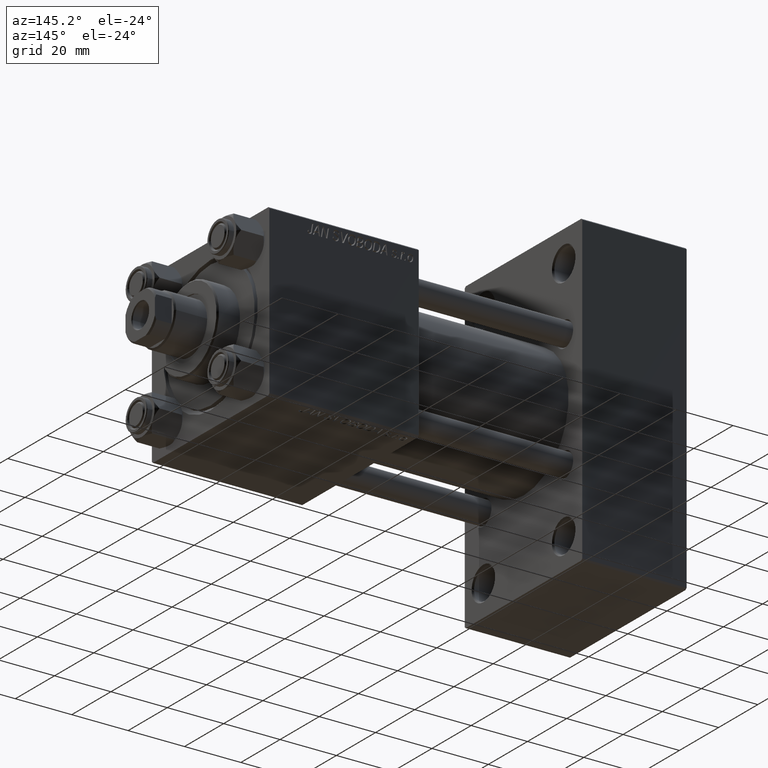
[diagram: clean part render]
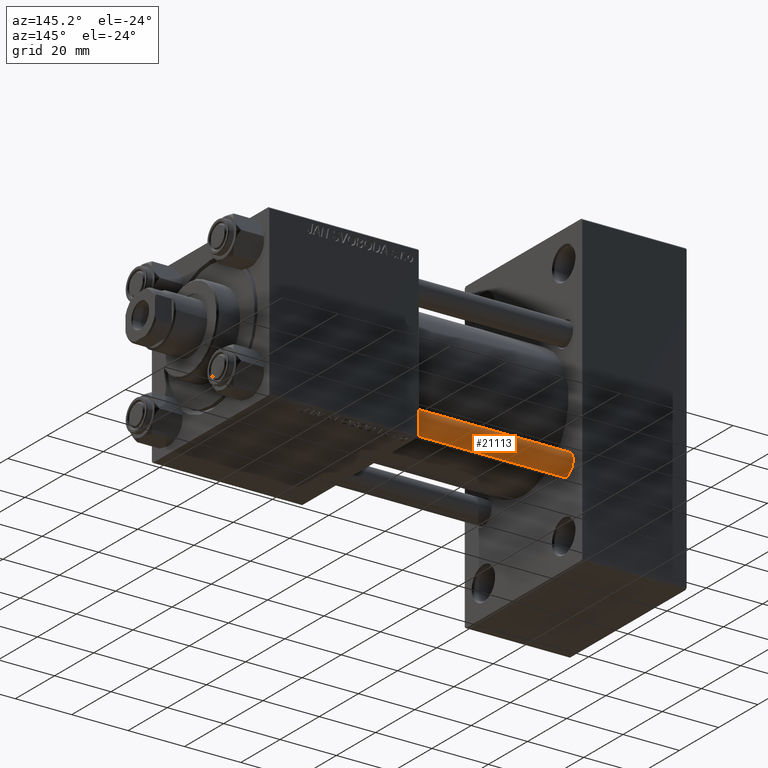
[diagram: same view with one face highlighted and labeled with its STEP entity id]
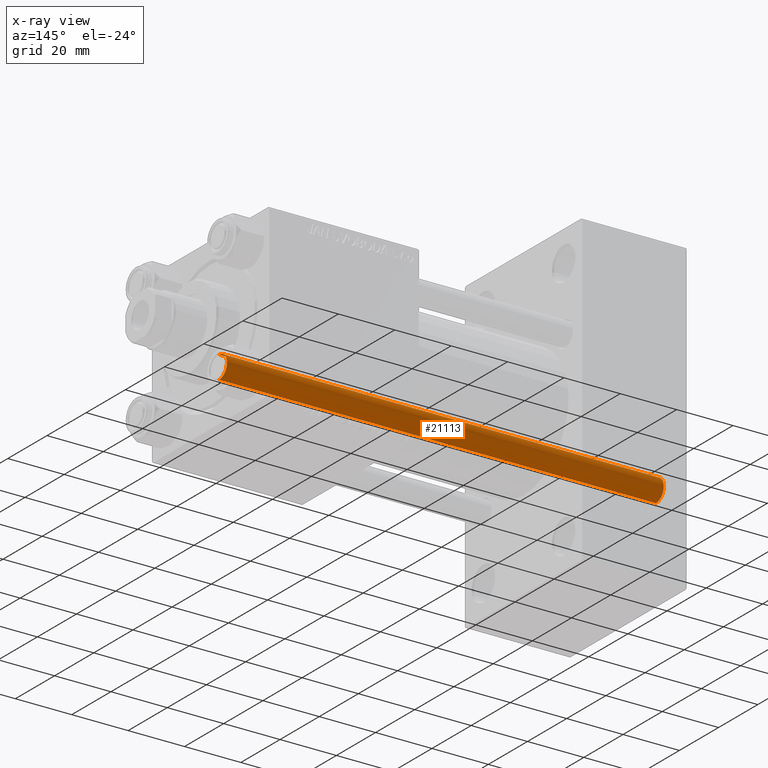
[diagram: x-ray of the same camera — body ghosted, the highlighted face saturated]
A machine part, auxiliary view. The second image highlights one B-rep face of the part: STEP entity #21113.
The next image is the same camera in x-ray: the body ghosted, the highlighted face saturated — about 0% of this face is hidden behind the body in this view.
In plain terms, the highlighted cylindrical surface (edge-blend (fillet) strip) has radius 4 mm, axis along (-1, 0, 0).
Its self-contained STEP definition (entity closure, byte-faithful):
#287 = DIRECTION ( 'NONE',  ( -0.000000000000000000, -0.000000000000000000, -1.000000000000000000 ) ) ;
#1022 = CARTESIAN_POINT ( 'NONE',  ( 4.000000000000000000, 4.898587196589412829E-16, 156.0000000000000000 ) ) ;
#2188 = VERTEX_POINT ( 'NONE', #18750 ) ;
#2992 = VECTOR ( 'NONE', #10611, 1000.000000000000000 ) ;
#3033 = DIRECTION ( 'NONE',  ( 1.000000000000000000, 0.000000000000000000, 0.000000000000000000 ) ) ;
#6864 = CARTESIAN_POINT ( 'NONE',  ( -4.000000000000000000, 0.000000000000000000, 0.5000000000000281997 ) ) ;
#6955 = CIRCLE ( 'NONE', #20639, 4.000000000000000000 ) ;
#8426 = DIRECTION ( 'NONE',  ( -1.000000000000000000, 0.000000000000000000, 0.000000000000000000 ) ) ;
#8490 = DIRECTION ( 'NONE',  ( 1.000000000000000000, 0.000000000000000000, 0.000000000000000000 ) ) ;
#9012 = CARTESIAN_POINT ( 'NONE',  ( 4.000000000000000000, 4.898587196589412829E-16, 0.5000000000000281997 ) ) ;
#10611 = DIRECTION ( 'NONE',  ( -0.000000000000000000, -0.000000000000000000, -1.000000000000000000 ) ) ;
#12700 = CARTESIAN_POINT ( 'NONE',  ( 0.000000000000000000, 0.000000000000000000, 156.0000000000000000 ) ) ;
#15514 = EDGE_CURVE ( 'NONE', #24459, #31762, #31847, .T. ) ;
#15892 = EDGE_LOOP ( 'NONE', ( #48003, #40314, #44352, #34728 ) ) ;
#17912 = EDGE_CURVE ( 'NONE', #39450, #31762, #6955, .T. ) ;
#18427 = LINE ( 'NONE', #26526, #2992 ) ;
#18750 = CARTESIAN_POINT ( 'NONE',  ( -4.000000000000000000, 0.000000000000000000, 155.5000000000000284 ) ) ;
#18912 = DIRECTION ( 'NONE',  ( -0.000000000000000000, -0.000000000000000000, 1.000000000000000000 ) ) ;
#20639 = AXIS2_PLACEMENT_3D ( 'NONE', #45229, #18912, #3033 ) ;
#21113 = ADVANCED_FACE ( 'NONE', ( #27385 ), #27626, .T. ) ;
#22410 = EDGE_CURVE ( 'NONE', #2188, #39450, #18427, .T. ) ;
#24459 = VERTEX_POINT ( 'NONE', #38083 ) ;
#26428 = AXIS2_PLACEMENT_3D ( 'NONE', #12700, #31161, #8426 ) ;
#26526 = CARTESIAN_POINT ( 'NONE',  ( -4.000000000000000000, 0.000000000000000000, 156.0000000000000000 ) ) ;
#27385 = FACE_OUTER_BOUND ( 'NONE', #15892, .T. ) ;
#27626 = CYLINDRICAL_SURFACE ( 'NONE', #26428, 4.000000000000000000 ) ;
#31161 = DIRECTION ( 'NONE',  ( -0.000000000000000000, -0.000000000000000000, -1.000000000000000000 ) ) ;
#31762 = VERTEX_POINT ( 'NONE', #9012 ) ;
#31847 = LINE ( 'NONE', #1022, #33490 ) ;
#33490 = VECTOR ( 'NONE', #287, 1000.000000000000000 ) ;
#34529 = DIRECTION ( 'NONE',  ( 0.000000000000000000, 0.000000000000000000, -1.000000000000000000 ) ) ;
#34728 = ORIENTED_EDGE ( 'NONE', *, *, #17912, .T. ) ;
#37161 = EDGE_CURVE ( 'NONE', #24459, #2188, #41798, .T. ) ;
#38083 = CARTESIAN_POINT ( 'NONE',  ( 4.000000000000000000, 4.898587196589412829E-16, 155.5000000000000284 ) ) ;
#38315 = CARTESIAN_POINT ( 'NONE',  ( 0.000000000000000000, 0.000000000000000000, 155.5000000000000284 ) ) ;
#39450 = VERTEX_POINT ( 'NONE', #6864 ) ;
#40314 = ORIENTED_EDGE ( 'NONE', *, *, #37161, .T. ) ;
#41798 = CIRCLE ( 'NONE', #47427, 4.000000000000000000 ) ;
#44352 = ORIENTED_EDGE ( 'NONE', *, *, #22410, .T. ) ;
#45229 = CARTESIAN_POINT ( 'NONE',  ( 0.000000000000000000, 0.000000000000000000, 0.5000000000000281997 ) ) ;
#47427 = AXIS2_PLACEMENT_3D ( 'NONE', #38315, #34529, #8490 ) ;
#48003 = ORIENTED_EDGE ( 'NONE', *, *, #15514, .F. ) ;